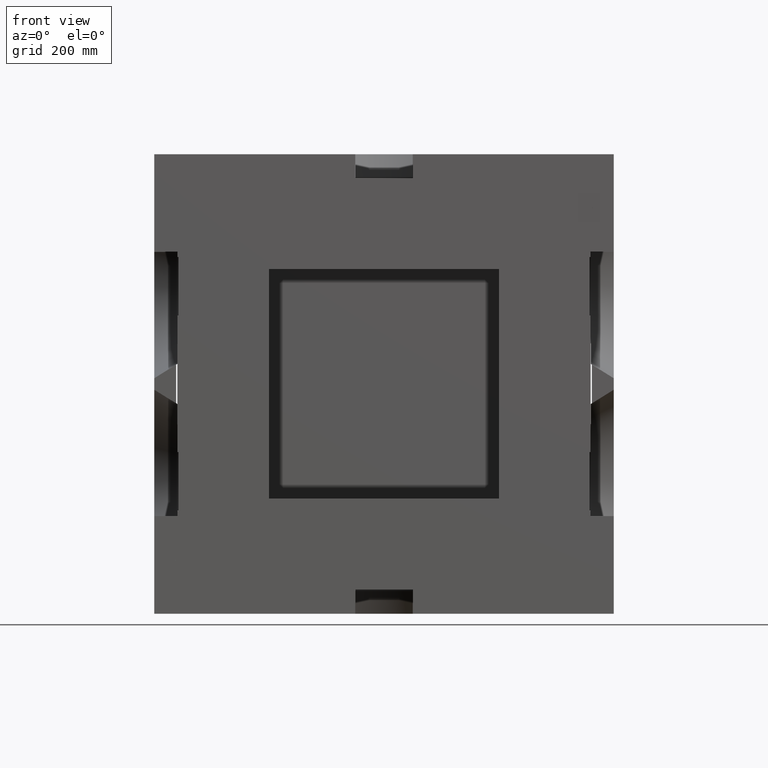
[diagram: clean part render]
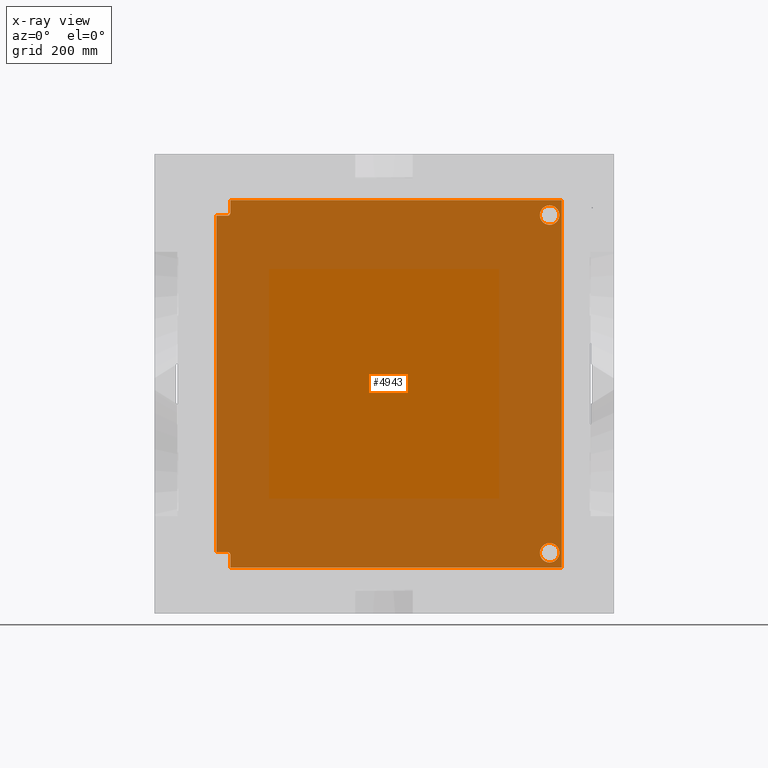
[diagram: x-ray — body ghosted, one internal face saturated and labeled with its STEP entity id]
A machine part, front view, then the same camera in x-ray: the body is ghosted and one INTERNAL B-rep face — a face not visible from any outside direction — is saturated and labeled: STEP entity #4943.
In plain terms, the highlighted planar face has unit normal (-0, 1, 0).
Its self-contained STEP definition (entity closure, byte-faithful):
#61 = DIRECTION ( 'NONE',  ( 1.000000000000000000, 3.330669073875475538E-16, 1.734723475976802164E-17 ) ) ;
#136 = ORIENTED_EDGE ( 'NONE', *, *, #24337, .F. ) ;
#261 = AXIS2_PLACEMENT_3D ( 'NONE', #19694, #15381, #23271 ) ;
#355 = CARTESIAN_POINT ( 'NONE',  ( 309.5540290502947300, 495.4999999999997726, 319.8223009986727448 ) ) ;
#538 = ORIENTED_EDGE ( 'NONE', *, *, #23915, .F. ) ;
#783 = LINE ( 'NONE', #5272, #18045 ) ;
#988 = EDGE_CURVE ( 'NONE', #5894, #5894, #21295, .T. ) ;
#1050 = CIRCLE ( 'NONE', #4502, 5.000000000000004441 ) ;
#1360 = VECTOR ( 'NONE', #25417, 1000.000000000000000 ) ;
#1409 = EDGE_LOOP ( 'NONE', ( #17913 ) ) ;
#1411 = EDGE_CURVE ( 'NONE', #4283, #25469, #7048, .T. ) ;
#1416 = VERTEX_POINT ( 'NONE', #13028 ) ;
#1676 = PLANE ( 'NONE',  #17648 ) ;
#1711 = CARTESIAN_POINT ( 'NONE',  ( 288.3759210180525656, 495.4999999999996021, -310.9999999999978968 ) ) ;
#2011 = CARTESIAN_POINT ( 'NONE',  ( -267.6240700456089030, 495.4999999999991473, 319.9723009986726652 ) ) ;
#2027 = VERTEX_POINT ( 'NONE', #3637 ) ;
#2105 = AXIS2_PLACEMENT_3D ( 'NONE', #25494, #13612, #17525 ) ;
#2204 = CARTESIAN_POINT ( 'NONE',  ( 311.7272458948352210, 495.4999999999996589, -319.8223009986693910 ) ) ;
#2634 = LINE ( 'NONE', #355, #22377 ) ;
#2953 = EDGE_CURVE ( 'NONE', #16940, #25469, #1050, .T. ) ;
#3218 = LINE ( 'NONE', #12858, #14057 ) ;
#3387 = EDGE_CURVE ( 'NONE', #15678, #16760, #19857, .T. ) ;
#3566 = CARTESIAN_POINT ( 'NONE',  ( -292.1606564779808082, 495.4999999999991473, 292.9245504791668964 ) ) ;
#3637 = CARTESIAN_POINT ( 'NONE',  ( 309.4040290502947528, 495.4999999999993179, 319.8223009986727448 ) ) ;
#4244 = EDGE_CURVE ( 'NONE', #6374, #25449, #4585, .T. ) ;
#4283 = VERTEX_POINT ( 'NONE', #14032 ) ;
#4502 = AXIS2_PLACEMENT_3D ( 'NONE', #6884, #4885, #20771 ) ;
#4585 = LINE ( 'NONE', #2204, #15418 ) ;
#4757 = LINE ( 'NONE', #17136, #24509 ) ;
#4885 = DIRECTION ( 'NONE',  ( 3.330669073875475538E-16, -1.000000000000000000, -3.885780586188053808E-16 ) ) ;
#4929 = ORIENTED_EDGE ( 'NONE', *, *, #2953, .T. ) ;
#4943 = ADVANCED_FACE ( 'NONE', ( #14177, #16025, #5498 ), #1676, .T. ) ;
#5196 = AXIS2_PLACEMENT_3D ( 'NONE', #18622, #8819, #14810 ) ;
#5272 = CARTESIAN_POINT ( 'NONE',  ( 311.7272458948352210, 495.4999999999993179, 319.8223009986726879 ) ) ;
#5498 = FACE_OUTER_BOUND ( 'NONE', #21070, .T. ) ;
#5894 = VERTEX_POINT ( 'NONE', #19223 ) ;
#6285 = CARTESIAN_POINT ( 'NONE',  ( 309.5540290502947300, 495.4999999999996589, -319.8223009986689931 ) ) ;
#6308 = LINE ( 'NONE', #13719, #1360 ) ;
#6374 = VERTEX_POINT ( 'NONE', #22552 ) ;
#6442 = VECTOR ( 'NONE', #16024, 1000.000000000000000 ) ;
#6600 = VERTEX_POINT ( 'NONE', #19968 ) ;
#6884 = CARTESIAN_POINT ( 'NONE',  ( -272.6240700456089030, 495.4999999999994316, -297.9245504791634858 ) ) ;
#7020 = LINE ( 'NONE', #15452, #16005 ) ;
#7048 = LINE ( 'NONE', #11174, #9834 ) ;
#7922 = ORIENTED_EDGE ( 'NONE', *, *, #11797, .T. ) ;
#8105 = ORIENTED_EDGE ( 'NONE', *, *, #11816, .F. ) ;
#8122 = CARTESIAN_POINT ( 'NONE',  ( -292.0106564779807172, 495.4999999999995453, 319.9723009986726652 ) ) ;
#8326 = DIRECTION ( 'NONE',  ( 1.734723475976785524E-17, 4.996003610813210348E-16, -1.000000000000000000 ) ) ;
#8819 = DIRECTION ( 'NONE',  ( 3.330669073875475538E-16, -1.000000000000000000, -3.885780586188053808E-16 ) ) ;
#9834 = VECTOR ( 'NONE', #14961, 1000.000000000000000 ) ;
#10305 = ORIENTED_EDGE ( 'NONE', *, *, #18809, .F. ) ;
#11145 = CARTESIAN_POINT ( 'NONE',  ( 309.4040290502946391, 495.4999999999996589, -319.9723009986692546 ) ) ;
#11174 = CARTESIAN_POINT ( 'NONE',  ( 311.7272458948352210, 495.4999999999996021, -292.9245504791634858 ) ) ;
#11243 = DIRECTION ( 'NONE',  ( -1.000000000000000000, -3.330669073875475538E-16, -1.734723475976802164E-17 ) ) ;
#11281 = LINE ( 'NONE', #14200, #12521 ) ;
#11568 = DIRECTION ( 'NONE',  ( -1.734723475976785524E-17, -4.996003610813210348E-16, 1.000000000000000000 ) ) ;
#11602 = DIRECTION ( 'NONE',  ( 1.734723475976785524E-17, 4.996003610813210348E-16, -1.000000000000000000 ) ) ;
#11797 = EDGE_CURVE ( 'NONE', #16761, #6600, #17918, .T. ) ;
#11816 = EDGE_CURVE ( 'NONE', #23154, #23154, #23109, .T. ) ;
#12207 = ORIENTED_EDGE ( 'NONE', *, *, #16023, .T. ) ;
#12521 = VECTOR ( 'NONE', #18683, 1000.000000000000000 ) ;
#12858 = CARTESIAN_POINT ( 'NONE',  ( 309.4040290502947528, 495.4999999999996589, -323.9999999999982947 ) ) ;
#13028 = CARTESIAN_POINT ( 'NONE',  ( 309.5540290502947300, 495.4999999999993179, 319.8223009986728584 ) ) ;
#13576 = DIRECTION ( 'NONE',  ( 1.734723475976785524E-17, 4.996003610813210348E-16, -1.000000000000000000 ) ) ;
#13612 = DIRECTION ( 'NONE',  ( -3.330669073875475538E-16, 1.000000000000000000, 3.885780586188053808E-16 ) ) ;
#13719 = CARTESIAN_POINT ( 'NONE',  ( -292.1606564779807513, 495.4999999999998863, -319.8223009986693341 ) ) ;
#13929 = ORIENTED_EDGE ( 'NONE', *, *, #13967, .T. ) ;
#13967 = EDGE_CURVE ( 'NONE', #21093, #15678, #11281, .T. ) ;
#14023 = DIRECTION ( 'NONE',  ( 1.734723475976785524E-17, 4.996003610813210348E-16, -1.000000000000000000 ) ) ;
#14032 = CARTESIAN_POINT ( 'NONE',  ( -292.1606564779807513, 495.4999999999998863, -292.9245504791633721 ) ) ;
#14043 = ORIENTED_EDGE ( 'NONE', *, *, #15167, .F. ) ;
#14057 = VECTOR ( 'NONE', #18997, 1000.000000000000000 ) ;
#14177 = FACE_BOUND ( 'NONE', #1409, .T. ) ;
#14200 = CARTESIAN_POINT ( 'NONE',  ( 311.7272458948352210, 495.4999999999993179, 292.9245504791668964 ) ) ;
#14261 = CARTESIAN_POINT ( 'NONE',  ( 309.4040290502946391, 495.4999999999993179, 319.9723009986726652 ) ) ;
#14810 = DIRECTION ( 'NONE',  ( 0.0000000000000000000, 0.0000000000000000000, -1.000000000000000000 ) ) ;
#14961 = DIRECTION ( 'NONE',  ( 1.000000000000000000, 3.330669073875475538E-16, 1.734723475976802164E-17 ) ) ;
#15167 = EDGE_CURVE ( 'NONE', #16940, #6600, #23743, .T. ) ;
#15381 = DIRECTION ( 'NONE',  ( 3.330669073875475538E-16, -1.000000000000000000, -3.885780586188053808E-16 ) ) ;
#15401 = CARTESIAN_POINT ( 'NONE',  ( 311.7272458948352210, 495.4999999999996589, -323.9999999999982947 ) ) ;
#15418 = VECTOR ( 'NONE', #61, 1000.000000000000000 ) ;
#15452 = CARTESIAN_POINT ( 'NONE',  ( 309.4040290502947528, 495.4999999999996589, -323.9999999999982947 ) ) ;
#15678 = VERTEX_POINT ( 'NONE', #16575 ) ;
#15904 = ORIENTED_EDGE ( 'NONE', *, *, #1411, .F. ) ;
#16005 = VECTOR ( 'NONE', #11568, 1000.000000000000000 ) ;
#16023 = EDGE_CURVE ( 'NONE', #21970, #24172, #16355, .T. ) ;
#16024 = DIRECTION ( 'NONE',  ( 1.000000000000000000, 3.330669073875475538E-16, 1.734723475976802164E-17 ) ) ;
#16025 = FACE_BOUND ( 'NONE', #22417, .T. ) ;
#16355 = LINE ( 'NONE', #8122, #6442 ) ;
#16575 = CARTESIAN_POINT ( 'NONE',  ( -272.6240700456089030, 495.4999999999991473, 292.9245504791668964 ) ) ;
#16760 = VERTEX_POINT ( 'NONE', #24806 ) ;
#16761 = VERTEX_POINT ( 'NONE', #11145 ) ;
#16940 = VERTEX_POINT ( 'NONE', #21704 ) ;
#17065 = EDGE_CURVE ( 'NONE', #1416, #25449, #2634, .T. ) ;
#17136 = CARTESIAN_POINT ( 'NONE',  ( -267.6240700456089030, 495.4999999999994884, -323.9999999999982947 ) ) ;
#17349 = CARTESIAN_POINT ( 'NONE',  ( 309.4040290502946391, 495.5000000000001137, -319.9723009986692546 ) ) ;
#17525 = DIRECTION ( 'NONE',  ( 0.0000000000000000000, 0.0000000000000000000, -1.000000000000000000 ) ) ;
#17648 = AXIS2_PLACEMENT_3D ( 'NONE', #15401, #21407, #11602 ) ;
#17913 = ORIENTED_EDGE ( 'NONE', *, *, #988, .T. ) ;
#17918 = LINE ( 'NONE', #17349, #18842 ) ;
#18045 = VECTOR ( 'NONE', #11243, 1000.000000000000000 ) ;
#18622 = CARTESIAN_POINT ( 'NONE',  ( -272.6240700456089030, 495.4999999999991473, 297.9245504791669532 ) ) ;
#18683 = DIRECTION ( 'NONE',  ( 1.000000000000000000, 3.330669073875475538E-16, 1.734723475976802164E-17 ) ) ;
#18809 = EDGE_CURVE ( 'NONE', #1416, #2027, #783, .T. ) ;
#18842 = VECTOR ( 'NONE', #19156, 1000.000000000000000 ) ;
#18997 = DIRECTION ( 'NONE',  ( -1.734723475976785524E-17, -4.996003610813210348E-16, 1.000000000000000000 ) ) ;
#19145 = VECTOR ( 'NONE', #14023, 1000.000000000000000 ) ;
#19156 = DIRECTION ( 'NONE',  ( -1.000000000000000000, -3.330669073875475538E-16, -1.734723475976802164E-17 ) ) ;
#19223 = CARTESIAN_POINT ( 'NONE',  ( 288.3759210180525656, 495.4999999999993179, 311.0000000000013074 ) ) ;
#19694 = CARTESIAN_POINT ( 'NONE',  ( 288.3759210180525656, 495.4999999999993179, 294.0000000000013074 ) ) ;
#19857 = CIRCLE ( 'NONE', #5196, 5.000000000000004441 ) ;
#19906 = ORIENTED_EDGE ( 'NONE', *, *, #4244, .F. ) ;
#19951 = ORIENTED_EDGE ( 'NONE', *, *, #24057, .T. ) ;
#19968 = CARTESIAN_POINT ( 'NONE',  ( -267.6240700456089030, 495.4999999999994884, -319.9723009986692546 ) ) ;
#20771 = DIRECTION ( 'NONE',  ( 0.0000000000000000000, 0.0000000000000000000, -1.000000000000000000 ) ) ;
#21001 = EDGE_CURVE ( 'NONE', #16761, #6374, #7020, .T. ) ;
#21070 = EDGE_LOOP ( 'NONE', ( #19951, #13929, #22742, #136, #12207, #538, #10305, #23334, #19906, #22437, #7922, #14043, #4929, #15904 ) ) ;
#21093 = VERTEX_POINT ( 'NONE', #3566 ) ;
#21295 = CIRCLE ( 'NONE', #261, 17.00000000000001421 ) ;
#21407 = DIRECTION ( 'NONE',  ( -3.330669073875475538E-16, 1.000000000000000000, 4.996003610813210348E-16 ) ) ;
#21671 = CARTESIAN_POINT ( 'NONE',  ( -267.6240700456089030, 495.4999999999994884, -323.9999999999982947 ) ) ;
#21704 = CARTESIAN_POINT ( 'NONE',  ( -267.6240700456089030, 495.4999999999994316, -297.9245504791634858 ) ) ;
#21970 = VERTEX_POINT ( 'NONE', #2011 ) ;
#22377 = VECTOR ( 'NONE', #8326, 1000.000000000000000 ) ;
#22417 = EDGE_LOOP ( 'NONE', ( #8105 ) ) ;
#22437 = ORIENTED_EDGE ( 'NONE', *, *, #21001, .F. ) ;
#22552 = CARTESIAN_POINT ( 'NONE',  ( 309.4040290502947528, 495.4999999999996589, -319.8223009986693910 ) ) ;
#22742 = ORIENTED_EDGE ( 'NONE', *, *, #3387, .T. ) ;
#23109 = CIRCLE ( 'NONE', #2105, 17.00000000000001421 ) ;
#23154 = VERTEX_POINT ( 'NONE', #1711 ) ;
#23271 = DIRECTION ( 'NONE',  ( 0.0000000000000000000, 0.0000000000000000000, 1.000000000000000000 ) ) ;
#23334 = ORIENTED_EDGE ( 'NONE', *, *, #17065, .T. ) ;
#23743 = LINE ( 'NONE', #21671, #19145 ) ;
#23915 = EDGE_CURVE ( 'NONE', #2027, #24172, #3218, .T. ) ;
#23964 = CARTESIAN_POINT ( 'NONE',  ( -272.6240700456089030, 495.4999999999994316, -292.9245504791634858 ) ) ;
#24057 = EDGE_CURVE ( 'NONE', #4283, #21093, #6308, .T. ) ;
#24172 = VERTEX_POINT ( 'NONE', #14261 ) ;
#24337 = EDGE_CURVE ( 'NONE', #21970, #16760, #4757, .T. ) ;
#24509 = VECTOR ( 'NONE', #13576, 1000.000000000000000 ) ;
#24806 = CARTESIAN_POINT ( 'NONE',  ( -267.6240700456089030, 495.4999999999991473, 297.9245504791670101 ) ) ;
#25417 = DIRECTION ( 'NONE',  ( -1.734723475976785524E-17, -4.996003610813210348E-16, 1.000000000000000000 ) ) ;
#25449 = VERTEX_POINT ( 'NONE', #6285 ) ;
#25469 = VERTEX_POINT ( 'NONE', #23964 ) ;
#25494 = CARTESIAN_POINT ( 'NONE',  ( 288.3759210180525656, 495.4999999999996021, -293.9999999999978968 ) ) ;